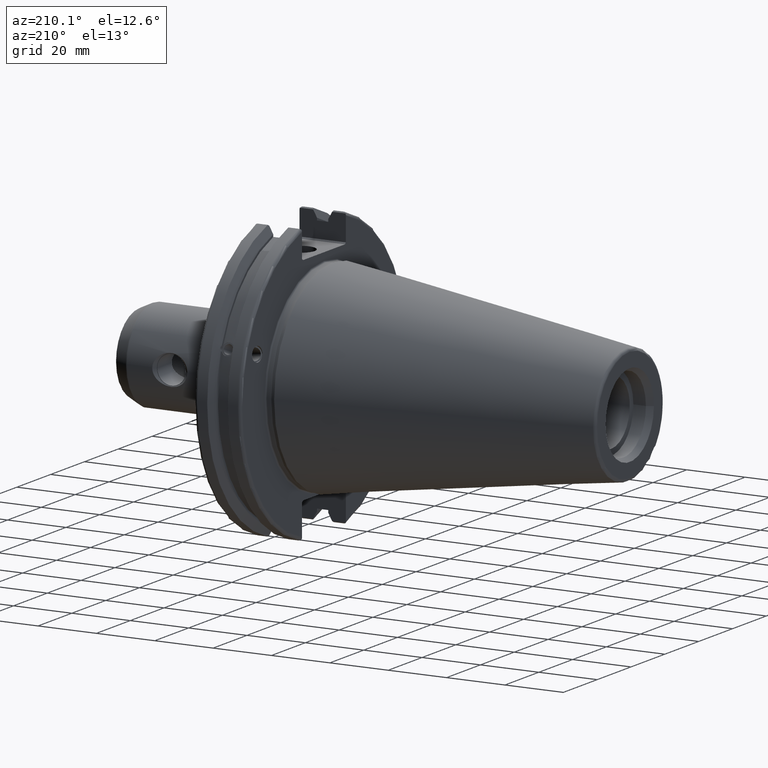
[diagram: clean part render]
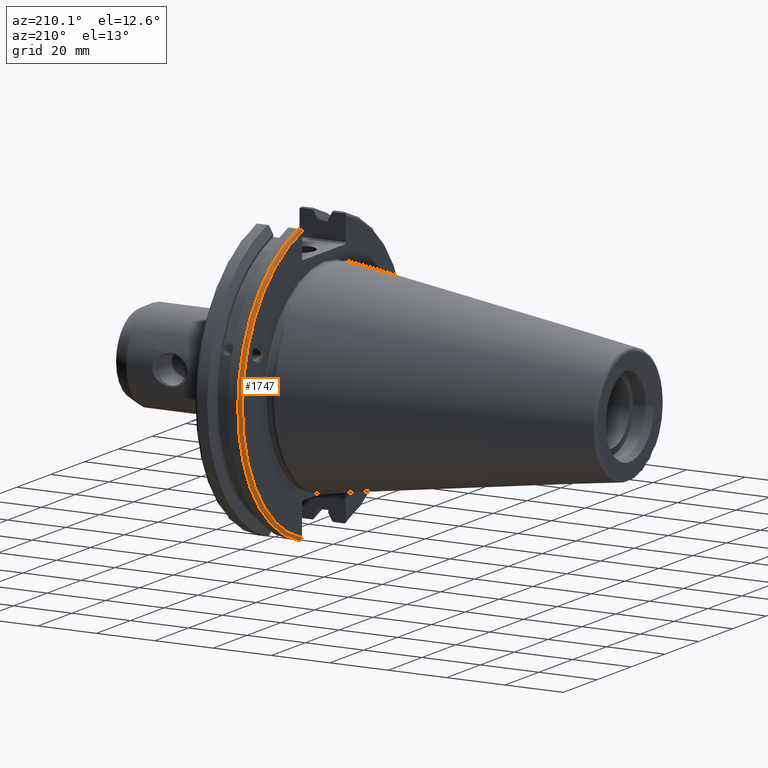
[diagram: same view with one face highlighted and labeled with its STEP entity id]
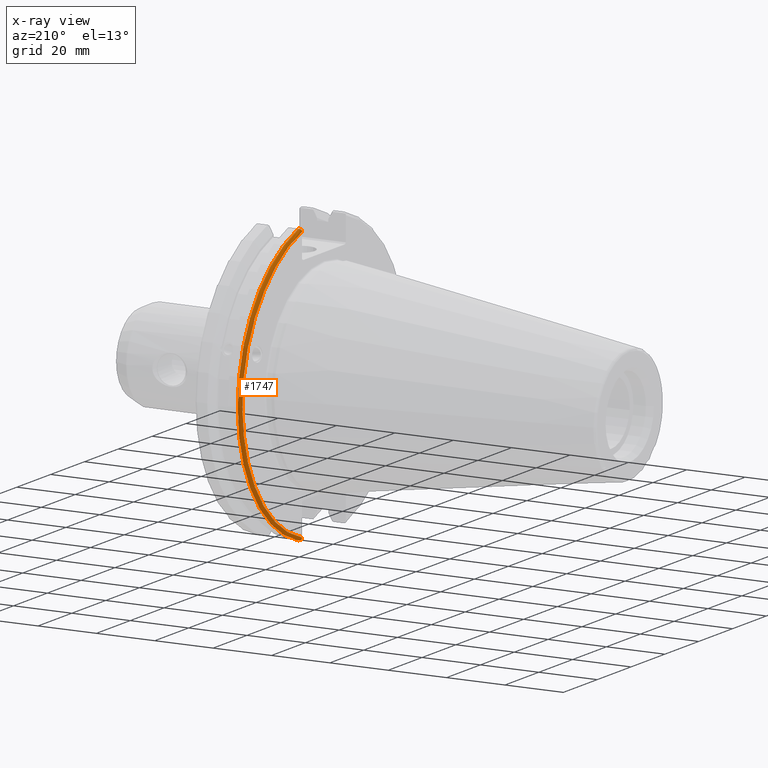
[diagram: x-ray of the same camera — body ghosted, the highlighted face saturated]
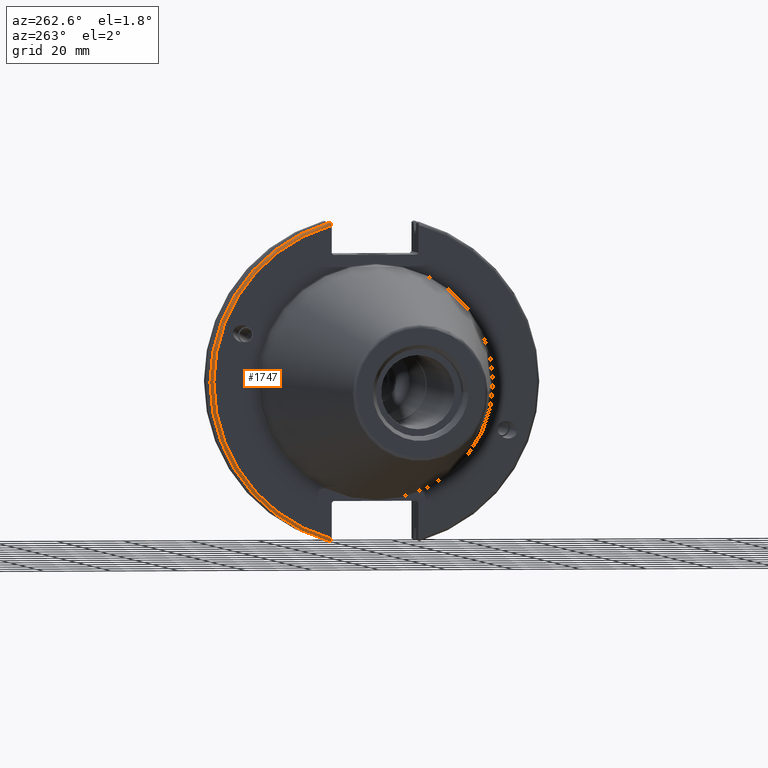
[diagram: same view with one face highlighted and labeled with its STEP entity id]
A machine part, auxiliary view. The second image highlights one B-rep face of the part: STEP entity #1747.
The next image is the same camera in x-ray: the body ghosted, the highlighted face saturated — about 0% of this face is hidden behind the body in this view.
A second angle (auxiliary view) of the same face is appended — the face is thin or edge-on in the first view.
In plain terms, the highlighted toroidal blend (fillet) surface has major radius 48.2125 mm and minor (blend) radius 1 mm.
Its self-contained STEP definition (entity closure, byte-faithful):
#41=TOROIDAL_SURFACE('',#1944,48.2125,1.);
#384=CIRCLE('',#1926,48.2125);
#391=CIRCLE('',#1945,49.2125);
#500=FACE_OUTER_BOUND('',#607,.T.);
#607=EDGE_LOOP('',(#1524,#1525,#1526,#1527,#1528,#1529));
#676=B_SPLINE_CURVE_WITH_KNOTS('',3,(#3401,#3402,#3403,#3404,#3405,#3406),
 .UNSPECIFIED.,.F.,.F.,(4,2,4),(0.0976892167532858,0.112000071948292,0.150881870548587),
 .UNSPECIFIED.);
#685=B_SPLINE_CURVE_WITH_KNOTS('',3,(#3518,#3519,#3520,#3521,#3522,#3523,
#3524,#3525),.UNSPECIFIED.,.F.,.F.,(4,2,2,4),(-0.104075769062722,-0.0730268503455479,
-0.0343639873656265,0.),.UNSPECIFIED.);
#686=B_SPLINE_CURVE_WITH_KNOTS('',3,(#3528,#3529,#3530,#3531,#3532,#3533,
#3534,#3535),.UNSPECIFIED.,.F.,.F.,(4,2,2,4),(0.,0.0343639873656266,0.0730268503455482,
0.104075769062722),.UNSPECIFIED.);
#687=B_SPLINE_CURVE_WITH_KNOTS('',3,(#3536,#3537,#3538,#3539,#3540,#3541),
 .UNSPECIFIED.,.F.,.F.,(4,2,4),(0.452859340315923,0.491741138916218,0.506051994111224),
 .UNSPECIFIED.);
#824=VERTEX_POINT('',#3337);
#825=VERTEX_POINT('',#3339);
#838=VERTEX_POINT('',#3400);
#854=VERTEX_POINT('',#3516);
#855=VERTEX_POINT('',#3517);
#856=VERTEX_POINT('',#3526);
#1051=EDGE_CURVE('',#825,#824,#384,.T.);
#1069=EDGE_CURVE('',#838,#825,#676,.T.);
#1098=EDGE_CURVE('',#854,#855,#685,.T.);
#1099=EDGE_CURVE('',#855,#856,#391,.T.);
#1100=EDGE_CURVE('',#856,#838,#686,.T.);
#1101=EDGE_CURVE('',#824,#854,#687,.T.);
#1524=ORIENTED_EDGE('',*,*,#1098,.T.);
#1525=ORIENTED_EDGE('',*,*,#1099,.T.);
#1526=ORIENTED_EDGE('',*,*,#1100,.T.);
#1527=ORIENTED_EDGE('',*,*,#1069,.T.);
#1528=ORIENTED_EDGE('',*,*,#1051,.T.);
#1529=ORIENTED_EDGE('',*,*,#1101,.T.);
#1747=ADVANCED_FACE('',(#500),#41,.T.);
#1926=AXIS2_PLACEMENT_3D('',#3340,#2310,#2311);
#1944=AXIS2_PLACEMENT_3D('',#3515,#2367,#2368);
#1945=AXIS2_PLACEMENT_3D('',#3527,#2369,#2370);
#2310=DIRECTION('center_axis',(1.,0.,0.));
#2311=DIRECTION('ref_axis',(0.,1.,-6.12323399573677E-17));
#2367=DIRECTION('center_axis',(1.,0.,0.));
#2368=DIRECTION('ref_axis',(0.,0.,-1.));
#2369=DIRECTION('center_axis',(-1.,0.,0.));
#2370=DIRECTION('ref_axis',(0.,1.,-6.12323399573677E-17));
#3337=CARTESIAN_POINT('',(3.175,12.95,46.4407434937254));
#3339=CARTESIAN_POINT('',(3.175,12.95,-46.4407434937254));
#3340=CARTESIAN_POINT('Origin',(3.175,0.,0.));
#3400=CARTESIAN_POINT('',(3.31949794294344,12.95,-46.9780755322918));
#3401=CARTESIAN_POINT('Ctrl Pts',(3.31949794294344,12.95,-46.9780755322918));
#3402=CARTESIAN_POINT('Ctrl Pts',(3.29341556483839,12.95,-46.9333752207329));
#3403=CARTESIAN_POINT('Ctrl Pts',(3.27115672912336,12.95,-46.887363294568));
#3404=CARTESIAN_POINT('Ctrl Pts',(3.20453530071253,12.95,-46.7230464903732));
#3405=CARTESIAN_POINT('Ctrl Pts',(3.175,12.95,-46.5703494890597));
#3406=CARTESIAN_POINT('Ctrl Pts',(3.175,12.95,-46.4407434937254));
#3515=CARTESIAN_POINT('Origin',(4.175,0.,0.));
#3516=CARTESIAN_POINT('',(3.31949794294344,12.95,46.9780755322918));
#3517=CARTESIAN_POINT('',(4.175,13.4317035994433,47.3440544806494));
#3518=CARTESIAN_POINT('Ctrl Pts',(3.31949794294344,12.95,46.9780755322918));
#3519=CARTESIAN_POINT('Ctrl Pts',(3.36785032278754,13.0300321736484,47.0388807469102));
#3520=CARTESIAN_POINT('Ctrl Pts',(3.43235971798504,13.1083611826073,47.0983919657547));
#3521=CARTESIAN_POINT('Ctrl Pts',(3.58507512107923,13.2478194810695,47.2043467509586));
#3522=CARTESIAN_POINT('Ctrl Pts',(3.70638116490965,13.3242014686233,47.2623787015413));
#3523=CARTESIAN_POINT('Ctrl Pts',(3.92661103245834,13.4067722493645,47.3251126473446));
#3524=CARTESIAN_POINT('Ctrl Pts',(4.06045337544791,13.4317035994433,47.3440544806494));
#3525=CARTESIAN_POINT('Ctrl Pts',(4.175,13.4317035994433,47.3440544806494));
#3526=CARTESIAN_POINT('',(4.175,13.4317035994433,-47.3440544806494));
#3527=CARTESIAN_POINT('Origin',(4.175,0.,0.));
#3528=CARTESIAN_POINT('Ctrl Pts',(4.175,13.4317035994433,-47.3440544806494));
#3529=CARTESIAN_POINT('Ctrl Pts',(4.06045337544791,13.4317035994433,-47.3440544806494));
#3530=CARTESIAN_POINT('Ctrl Pts',(3.92661103245834,13.4067722493645,-47.3251126473446));
#3531=CARTESIAN_POINT('Ctrl Pts',(3.70638116490964,13.3242014686232,-47.2623787015413));
#3532=CARTESIAN_POINT('Ctrl Pts',(3.58507512107923,13.2478194810695,-47.2043467509586));
#3533=CARTESIAN_POINT('Ctrl Pts',(3.43235971798504,13.1083611826073,-47.0983919657547));
#3534=CARTESIAN_POINT('Ctrl Pts',(3.36785032278754,13.0300321736484,-47.0388807469102));
#3535=CARTESIAN_POINT('Ctrl Pts',(3.31949794294344,12.95,-46.9780755322918));
#3536=CARTESIAN_POINT('Ctrl Pts',(3.175,12.95,46.4407434937254));
#3537=CARTESIAN_POINT('Ctrl Pts',(3.175,12.95,46.5703494890597));
#3538=CARTESIAN_POINT('Ctrl Pts',(3.20453530071253,12.95,46.7230464903732));
#3539=CARTESIAN_POINT('Ctrl Pts',(3.27115672912336,12.95,46.887363294568));
#3540=CARTESIAN_POINT('Ctrl Pts',(3.29341556483839,12.95,46.9333752207329));
#3541=CARTESIAN_POINT('Ctrl Pts',(3.31949794294344,12.95,46.9780755322918));